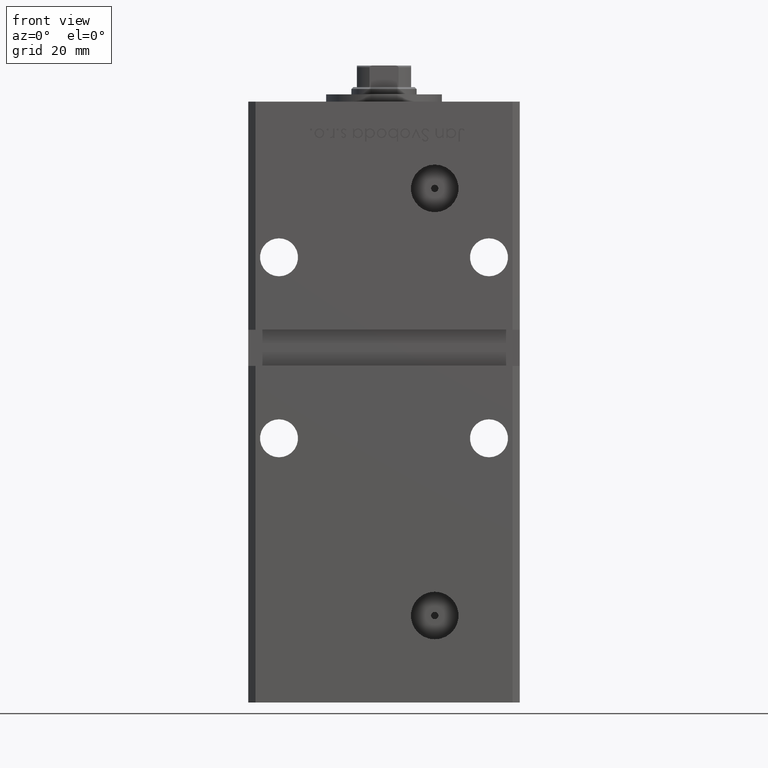
[diagram: clean part render]
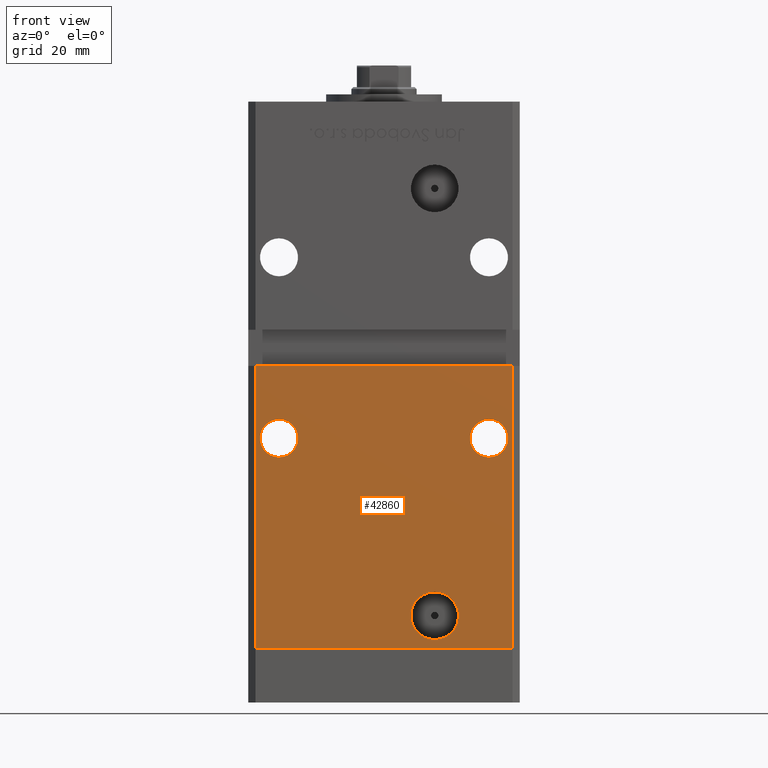
[diagram: same view with one face highlighted and labeled with its STEP entity id]
A machine part, front view. The second image highlights one B-rep face of the part: STEP entity #42860.
In plain terms, the highlighted planar face has unit normal (0, 1, 0).
Its self-contained STEP definition (entity closure, byte-faithful):
#821 = CARTESIAN_POINT ( 'NONE',  ( 28.99999999999999645, -32.50000000000000000, 63.25000000000000000 ) ) ;
#1397 = ORIENTED_EDGE ( 'NONE', *, *, #47127, .F. ) ;
#2314 = ORIENTED_EDGE ( 'NONE', *, *, #33703, .T. ) ;
#2470 = LINE ( 'NONE', #34209, #52035 ) ;
#2674 = CARTESIAN_POINT ( 'NONE',  ( 13.99999999999999112, -32.50000000000000000, 15.58000000000000718 ) ) ;
#2771 = AXIS2_PLACEMENT_3D ( 'NONE', #10905, #27017, #34542 ) ;
#2966 = CARTESIAN_POINT ( 'NONE',  ( 35.49999999999999289, -32.50000000000000000, 136.0000000000000000 ) ) ;
#4058 = DIRECTION ( 'NONE',  ( 0.000000000000000000, -1.000000000000000000, 0.000000000000000000 ) ) ;
#4743 = VERTEX_POINT ( 'NONE', #31555 ) ;
#5175 = EDGE_CURVE ( 'NONE', #39704, #41743, #5742, .T. ) ;
#5742 = CIRCLE ( 'NONE', #48709, 6.579999999999998295 ) ;
#6333 = CARTESIAN_POINT ( 'NONE',  ( -28.99999999999999645, -32.50000000000000000, 63.25000000000001421 ) ) ;
#7029 = DIRECTION ( 'NONE',  ( 0.000000000000000000, 0.000000000000000000, -1.000000000000000000 ) ) ;
#7731 = AXIS2_PLACEMENT_3D ( 'NONE', #20736, #4058, #49752 ) ;
#9173 = CARTESIAN_POINT ( 'NONE',  ( -28.99999999999999645, -32.50000000000000000, 58.00000000000001421 ) ) ;
#10254 = LINE ( 'NONE', #2966, #47325 ) ;
#10905 = CARTESIAN_POINT ( 'NONE',  ( 28.99999999999999645, -32.50000000000000000, 58.00000000000001421 ) ) ;
#12002 = VECTOR ( 'NONE', #46119, 1000.000000000000000 ) ;
#12541 = ORIENTED_EDGE ( 'NONE', *, *, #14315, .F. ) ;
#13811 = EDGE_CURVE ( 'NONE', #4743, #36873, #42861, .T. ) ;
#14315 = EDGE_CURVE ( 'NONE', #41743, #39704, #34300, .T. ) ;
#15973 = EDGE_LOOP ( 'NONE', ( #43339, #2314 ) ) ;
#16345 = FACE_OUTER_BOUND ( 'NONE', #30028, .T. ) ;
#16865 = EDGE_LOOP ( 'NONE', ( #41873, #12541 ) ) ;
#18342 = CIRCLE ( 'NONE', #50113, 5.249999999999997335 ) ;
#18680 = CARTESIAN_POINT ( 'NONE',  ( -35.49999999999999289, -32.50000000000000000, 0.000000000000000000 ) ) ;
#18852 = LINE ( 'NONE', #43835, #34747 ) ;
#18870 = DIRECTION ( 'NONE',  ( 0.000000000000000000, -1.000000000000000000, 0.000000000000000000 ) ) ;
#18929 = CARTESIAN_POINT ( 'NONE',  ( 13.99999999999999112, -32.50000000000000000, 2.420000000000009699 ) ) ;
#20158 = ORIENTED_EDGE ( 'NONE', *, *, #13811, .T. ) ;
#20736 = CARTESIAN_POINT ( 'NONE',  ( 13.99999999999999112, -32.50000000000000000, 9.000000000000007105 ) ) ;
#22049 = DIRECTION ( 'NONE',  ( 0.000000000000000000, 1.000000000000000000, 0.000000000000000000 ) ) ;
#22349 = CARTESIAN_POINT ( 'NONE',  ( 28.99999999999999645, -32.50000000000000000, 58.00000000000001421 ) ) ;
#22593 = CIRCLE ( 'NONE', #52666, 5.249999999999984013 ) ;
#25133 = DIRECTION ( 'NONE',  ( 0.000000000000000000, 0.000000000000000000, 1.000000000000000000 ) ) ;
#25901 = CARTESIAN_POINT ( 'NONE',  ( 35.49999999999999289, -32.50000000000000000, 0.000000000000000000 ) ) ;
#26673 = DIRECTION ( 'NONE',  ( -0.000000000000000000, -0.000000000000000000, -1.000000000000000000 ) ) ;
#26919 = CARTESIAN_POINT ( 'NONE',  ( 13.99999999999999112, -32.50000000000000000, 9.000000000000007105 ) ) ;
#27017 = DIRECTION ( 'NONE',  ( 0.000000000000000000, 1.000000000000000000, 0.000000000000000000 ) ) ;
#27714 = ORIENTED_EDGE ( 'NONE', *, *, #29242, .T. ) ;
#28716 = VERTEX_POINT ( 'NONE', #46935 ) ;
#28891 = CARTESIAN_POINT ( 'NONE',  ( -28.99999999999999645, -32.50000000000000000, 58.00000000000001421 ) ) ;
#28920 = VERTEX_POINT ( 'NONE', #51712 ) ;
#29242 = EDGE_CURVE ( 'NONE', #45926, #28920, #22593, .T. ) ;
#29753 = FACE_BOUND ( 'NONE', #15973, .T. ) ;
#30028 = EDGE_LOOP ( 'NONE', ( #1397, #53227, #40767, #20158 ) ) ;
#31457 = AXIS2_PLACEMENT_3D ( 'NONE', #45890, #45353, #33253 ) ;
#31555 = CARTESIAN_POINT ( 'NONE',  ( -35.49999999999999289, -32.50000000000000000, 0.000000000000000000 ) ) ;
#33253 = DIRECTION ( 'NONE',  ( 0.000000000000000000, -0.000000000000000000, 1.000000000000000000 ) ) ;
#33703 = EDGE_CURVE ( 'NONE', #42334, #46686, #18342, .T. ) ;
#33785 = FACE_BOUND ( 'NONE', #16865, .T. ) ;
#33880 = DIRECTION ( 'NONE',  ( 0.000000000000000000, 0.000000000000000000, 1.000000000000000000 ) ) ;
#34209 = CARTESIAN_POINT ( 'NONE',  ( -35.49999999999999289, -32.50000000000000000, 136.0000000000000000 ) ) ;
#34300 = CIRCLE ( 'NONE', #7731, 6.579999999999998295 ) ;
#34542 = DIRECTION ( 'NONE',  ( 0.000000000000000000, 0.000000000000000000, 1.000000000000000000 ) ) ;
#34627 = CARTESIAN_POINT ( 'NONE',  ( -35.49999999999999289, -32.50000000000000000, 78.00000000000001421 ) ) ;
#34631 = EDGE_LOOP ( 'NONE', ( #27714, #39687 ) ) ;
#34694 = DIRECTION ( 'NONE',  ( 0.000000000000000000, 0.000000000000000000, 1.000000000000000000 ) ) ;
#34747 = VECTOR ( 'NONE', #39541, 1000.000000000000000 ) ;
#35390 = CIRCLE ( 'NONE', #2771, 5.249999999999984013 ) ;
#36873 = VERTEX_POINT ( 'NONE', #25901 ) ;
#38736 = DIRECTION ( 'NONE',  ( -0.000000000000000000, -0.000000000000000000, -1.000000000000000000 ) ) ;
#39053 = EDGE_CURVE ( 'NONE', #43796, #28716, #18852, .T. ) ;
#39541 = DIRECTION ( 'NONE',  ( 1.000000000000000000, 0.000000000000000000, 0.000000000000000000 ) ) ;
#39687 = ORIENTED_EDGE ( 'NONE', *, *, #50485, .T. ) ;
#39704 = VERTEX_POINT ( 'NONE', #18929 ) ;
#40767 = ORIENTED_EDGE ( 'NONE', *, *, #41487, .T. ) ;
#41317 = FACE_BOUND ( 'NONE', #34631, .T. ) ;
#41487 = EDGE_CURVE ( 'NONE', #43796, #4743, #2470, .T. ) ;
#41743 = VERTEX_POINT ( 'NONE', #2674 ) ;
#41873 = ORIENTED_EDGE ( 'NONE', *, *, #5175, .F. ) ;
#42188 = CIRCLE ( 'NONE', #47367, 5.249999999999997335 ) ;
#42230 = CARTESIAN_POINT ( 'NONE',  ( -28.99999999999999645, -32.50000000000000000, 52.75000000000002132 ) ) ;
#42334 = VERTEX_POINT ( 'NONE', #42230 ) ;
#42860 = ADVANCED_FACE ( 'NONE', ( #29753, #41317, #33785, #16345 ), #45622, .F. ) ;
#42861 = LINE ( 'NONE', #18680, #12002 ) ;
#43339 = ORIENTED_EDGE ( 'NONE', *, *, #47473, .T. ) ;
#43796 = VERTEX_POINT ( 'NONE', #34627 ) ;
#43835 = CARTESIAN_POINT ( 'NONE',  ( -37.49999999999999289, -32.50000000000000000, 78.00000000000001421 ) ) ;
#45353 = DIRECTION ( 'NONE',  ( 0.000000000000000000, 1.000000000000000000, 0.000000000000000000 ) ) ;
#45622 = PLANE ( 'NONE',  #31457 ) ;
#45890 = CARTESIAN_POINT ( 'NONE',  ( -35.49999999999999289, -32.50000000000000000, 136.0000000000000000 ) ) ;
#45926 = VERTEX_POINT ( 'NONE', #821 ) ;
#46119 = DIRECTION ( 'NONE',  ( 1.000000000000000000, 0.000000000000000000, 0.000000000000000000 ) ) ;
#46540 = DIRECTION ( 'NONE',  ( 0.000000000000000000, 1.000000000000000000, 0.000000000000000000 ) ) ;
#46686 = VERTEX_POINT ( 'NONE', #6333 ) ;
#46935 = CARTESIAN_POINT ( 'NONE',  ( 35.49999999999999289, -32.50000000000000000, 78.00000000000001421 ) ) ;
#47127 = EDGE_CURVE ( 'NONE', #28716, #36873, #10254, .T. ) ;
#47325 = VECTOR ( 'NONE', #38736, 1000.000000000000000 ) ;
#47367 = AXIS2_PLACEMENT_3D ( 'NONE', #28891, #49859, #25133 ) ;
#47473 = EDGE_CURVE ( 'NONE', #46686, #42334, #42188, .T. ) ;
#48709 = AXIS2_PLACEMENT_3D ( 'NONE', #26919, #18870, #7029 ) ;
#49752 = DIRECTION ( 'NONE',  ( 0.000000000000000000, 0.000000000000000000, -1.000000000000000000 ) ) ;
#49859 = DIRECTION ( 'NONE',  ( 0.000000000000000000, 1.000000000000000000, 0.000000000000000000 ) ) ;
#50113 = AXIS2_PLACEMENT_3D ( 'NONE', #9173, #22049, #33880 ) ;
#50485 = EDGE_CURVE ( 'NONE', #28920, #45926, #35390, .T. ) ;
#51712 = CARTESIAN_POINT ( 'NONE',  ( 28.99999999999999645, -32.50000000000000000, 52.75000000000002842 ) ) ;
#52035 = VECTOR ( 'NONE', #26673, 1000.000000000000000 ) ;
#52666 = AXIS2_PLACEMENT_3D ( 'NONE', #22349, #46540, #34694 ) ;
#53227 = ORIENTED_EDGE ( 'NONE', *, *, #39053, .F. ) ;